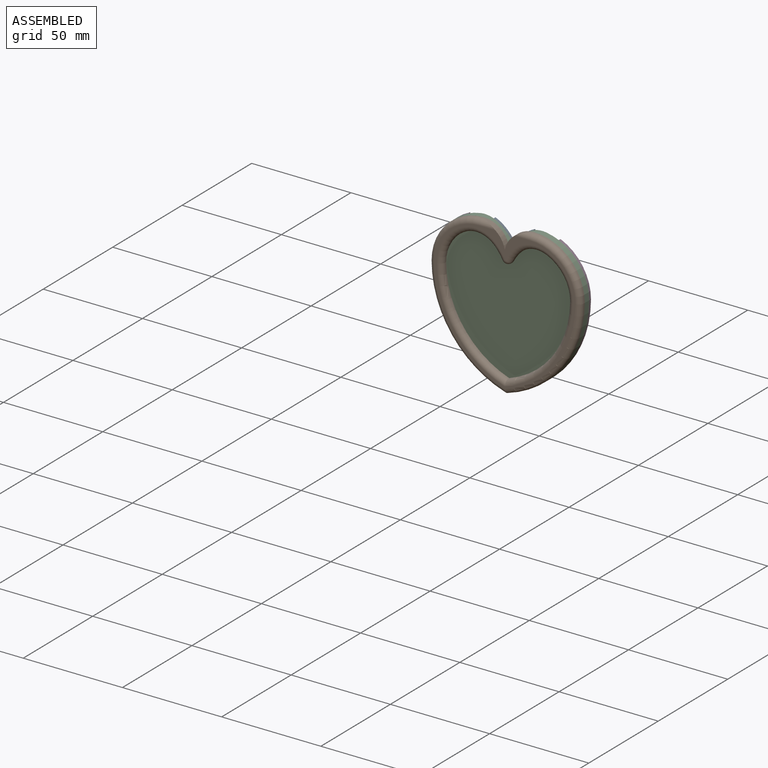
[diagram: assembled view]
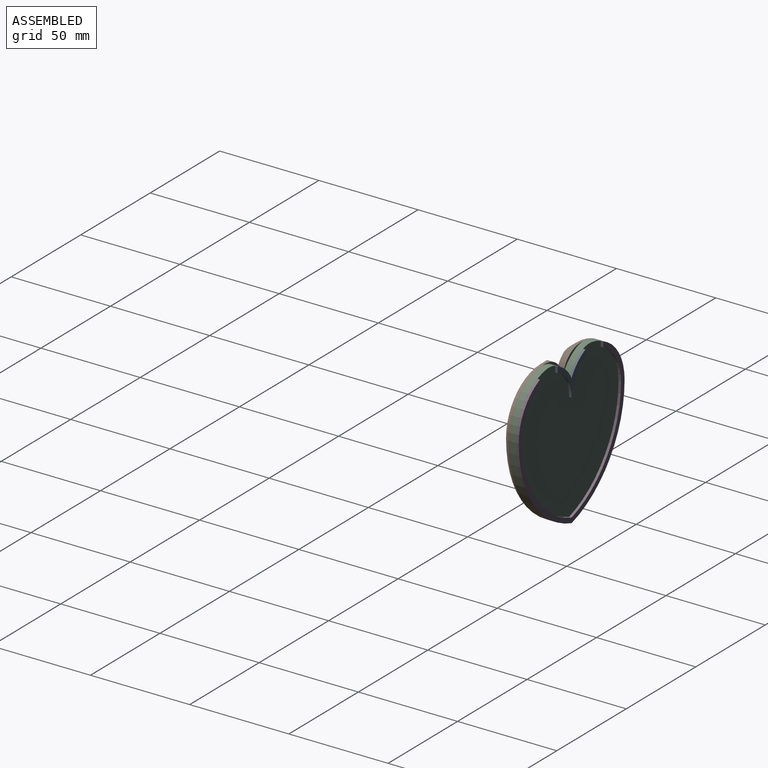
[diagram: assembled view, second angle]
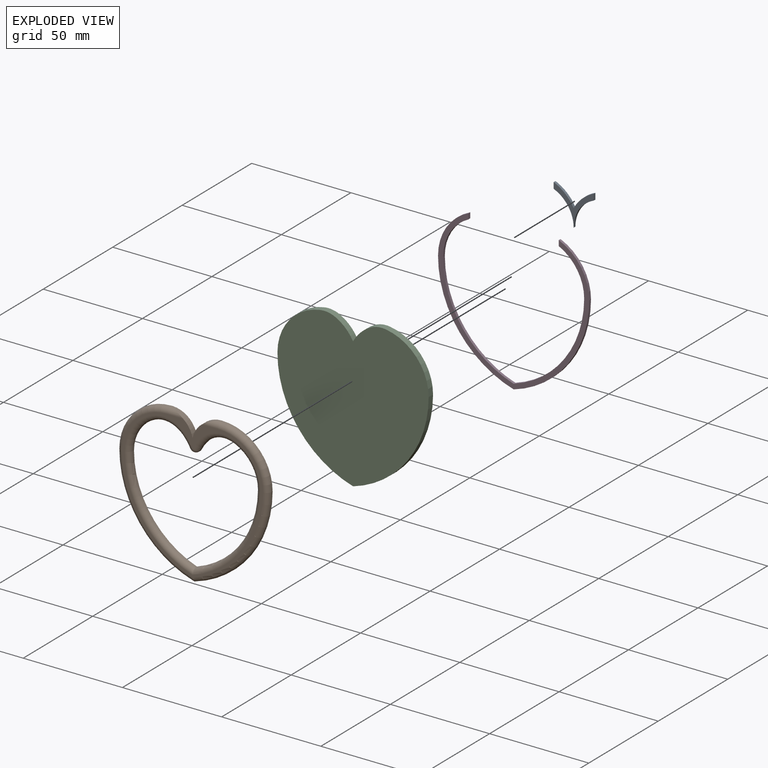
[diagram: exploded view]
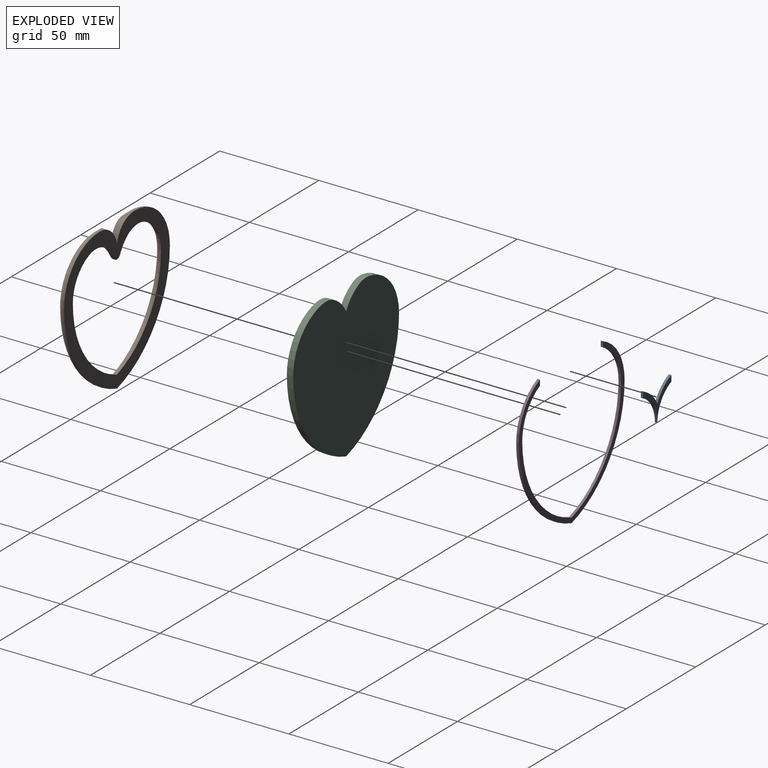
[diagram: exploded view, second angle]
ASSEMBLY  parts=4 mates=3
PART A: 10 faces, bbox 20.1x1.3x18.1 mm
  f0: plane 20.14x18.09mm, normal (0,-1,0), area 74.6mm2, adj f2,f3,f4,f5,f6,f7,f8,f9
  f1: plane 20.14x18.09mm, normal (0,1,0), area 74.6mm2, adj f2,f3,f4,f5,f6,f7,f8,f9
  f2: cylinder r=12.7mm len=1.33mm, axis (0,-1,0), area 1.9mm2, adj f0,f1,f5,f9
  f3: cylinder r=16.24mm len=15.02mm, axis (0,-1,0), area 24.4mm2, adj f0,f1,f7,f9
  f4: cylinder r=20.64mm len=8.74mm, axis (0,-1,0), area 15.8mm2, adj f0,f1,f5,f6
  f5: cylinder r=20.64mm len=8.74mm, axis (0,-1,0), area 15.8mm2, adj f0,f1,f2,f4
  f6: cylinder r=12.7mm len=1.33mm, axis (0,-1,0), area 1.9mm2, adj f0,f1,f4,f8
  f7: cylinder r=16.24mm len=15.02mm, axis (0,-1,0), area 24.4mm2, adj f0,f1,f3,f8
  f8: plane 3.07x1.27mm, normal (-1,0,0), area 3.9mm2, adj f0,f1,f6,f7
  f9: plane 3.07x1.27mm, normal (1,0,0), area 3.9mm2, adj f0,f1,f2,f3
PART B: 34 faces, bbox 84.9x4.3x82.5 mm
  f0: plane 71.12x71.01mm, normal (0,-1,0), area 351.5mm2, adj f7,f8,f18,f19,f20,f21,f22,f23
  f1: plane 76.2x76.2mm, normal (0,1,0), area 1461.9mm2, adj f2,f3,f4,f5,f6,f7,f8,f9
  f2: plane 0.64x0.51mm, normal (0,0,1), area 0.3mm2, adj f1,f7,f9,f33
  f3: plane 0.64x0.51mm, normal (0,0,1), area 0.3mm2, adj f1,f5,f8,f28
  f4: cylinder r=52.92mm len=50.8mm, axis (0,-1,0), area 43.2mm2, adj f1,f6,f9,f31
  f5: cylinder r=25.4mm len=25.4mm, axis (0,-1,0), area 25.3mm2, adj f1,f3,f6,f29
  f6: cylinder r=52.92mm len=50.8mm, axis (0,-1,0), area 43.2mm2, adj f1,f4,f5,f30
  f7: cylinder r=12.7mm len=12.19mm, axis (0,-1,0), area 47mm2, adj f0,f1,f2,f8,f33
  f8: cylinder r=12.7mm len=12.19mm, axis (0,-1,0), area 47mm2, adj f0,f1,f3,f7,f28
  f9: cylinder r=25.4mm len=25.4mm, axis (0,-1,0), area 25.3mm2, adj f1,f2,f4,f32
  f10: cylinder r=46.86mm len=44.45mm, axis (0,-1,0), area 37mm2, adj f1,f11,f15,f18
  f11: cylinder r=47.18mm len=44.45mm, axis (0,-1,0), area 37mm2, adj f1,f10,f12,f22
  f12: cylinder r=19.05mm len=17.46mm, axis (0,-1,0), area 14mm2, adj f1,f11,f17,f23
  f13: cylinder r=20.64mm len=5.7mm, axis (0,-1,0), area 4.6mm2, adj f1,f17,f25,f27
  f14: cylinder r=20.98mm len=5.42mm, axis (0,-1,0), area 4.3mm2, adj f1,f16,f21,f27
  f15: cylinder r=19.05mm len=17.6mm, axis (0,-1,0), area 14.2mm2, adj f1,f10,f16,f19
  f16: cylinder r=12.7mm len=13.84mm, axis (0,1,0), area 9.5mm2, adj f1,f14,f15,f20
  f17: cylinder r=12.7mm len=13.72mm, axis (0,1,0), area 9.3mm2, adj f1,f12,f13,f24
  f18: torus R=49.4mm, axis (0,-1,0), area 238.5mm2, adj f0,f10,f19,f22
  f19: torus R=21.59mm, axis (0,-1,0), area 93.8mm2, adj f0,f15,f18,f20
  f20: torus R=15.24mm, axis (0,-1,0), area 64mm2, adj f0,f16,f19,f21
  f21: torus R=23.52mm, axis (0,-1,0), area 28mm2, adj f0,f14,f20,f26
  f22: torus R=49.72mm, axis (0,-1,0), area 238.2mm2, adj f0,f11,f18,f23
  f23: torus R=21.59mm, axis (0,-1,0), area 92.4mm2, adj f0,f12,f22,f24
  f24: torus R=15.24mm, axis (0,-1,0), area 63mm2, adj f0,f17,f23,f25
  f25: torus R=23.18mm, axis (0,-1,0), area 30mm2, adj f0,f13,f24,f26
  f26: sphere r=2.54mm, area 14.2mm2, adj f21,f25,f27
  f27: cylinder r=2.54mm len=4.53mm, axis (0,-1,0), area 3.5mm2, adj f1,f13,f14,f26
  f28: cylinder r=2.54mm len=7.88mm, axis (1,0,0), area 17.5mm2, adj f0,f3,f8,f29
  f29: torus R=22.86mm, axis (0,-1,0), area 153.4mm2, adj f0,f5,f28,f30
  f30: torus R=50.38mm, axis (0,-1,0), area 265.9mm2, adj f0,f6,f29,f31
  f31: torus R=50.38mm, axis (0,-1,0), area 265.9mm2, adj f0,f4,f30,f32
  f32: torus R=22.86mm, axis (0,-1,0), area 153.4mm2, adj f0,f9,f31,f33
  f33: cylinder r=2.54mm len=7.88mm, axis (1,0,0), area 17.5mm2, adj f0,f2,f7,f32
PART C: 10 faces, bbox 76.2x3.2x76.1 mm
  f0: plane 76.2x76.06mm, normal (0,-1,0), area 4415.8mm2, adj f2,f3,f4,f5,f6,f7,f8,f9
  f1: plane 76.2x76.06mm, normal (0,1,0), area 4415.8mm2, adj f2,f3,f4,f5,f6,f7,f8,f9
  f2: cylinder r=25.4mm len=25.13mm, axis (0,-1,0), area 114.8mm2, adj f0,f1,f4,f9
  f3: cylinder r=25.4mm len=25.13mm, axis (0,-1,0), area 114.8mm2, adj f0,f1,f7,f8
  f4: cylinder r=52.92mm len=50.8mm, axis (0,-1,0), area 216.2mm2, adj f0,f1,f2,f7
  f5: cylinder r=20.64mm len=8.74mm, axis (0,-1,0), area 39.5mm2, adj f0,f1,f6,f8
  f6: cylinder r=20.64mm len=8.74mm, axis (0,-1,0), area 39.5mm2, adj f0,f1,f5,f9
  f7: cylinder r=52.92mm len=50.8mm, axis (0,-1,0), area 216.2mm2, adj f0,f1,f3,f4
  f8: cylinder r=12.7mm len=7.68mm, axis (0,-1,0), area 25.1mm2, adj f0,f1,f3,f5
  f9: cylinder r=12.7mm len=7.68mm, axis (0,-1,0), area 25.1mm2, adj f0,f1,f2,f6
PART D: 12 faces, bbox 76.2x1.3x74.1 mm
  f0: cylinder r=50.8mm len=48.26mm, axis (0,-1,0), area 81.4mm2, adj f1,f6,f9,f10
  f1: cylinder r=22.86mm len=20.55mm, axis (0,-1,0), area 32.4mm2, adj f0,f2,f9,f10
  f2: plane 2.77x1.27mm, normal (1,0,0), area 3.5mm2, adj f1,f3,f9,f10
  f3: cylinder r=25.4mm len=23.32mm, axis (0,-1,0), area 37.5mm2, adj f2,f4,f9,f10
  f4: cylinder r=52.92mm len=50.8mm, axis (0,-1,0), area 86.5mm2, adj f3,f5,f9,f10
  f5: cylinder r=52.92mm len=50.8mm, axis (0,-1,0), area 86.5mm2, adj f4,f7,f9,f10
  f6: cylinder r=50.8mm len=48.26mm, axis (0,-1,0), area 81.4mm2, adj f0,f8,f9,f10
  f7: cylinder r=25.4mm len=23.32mm, axis (0,-1,0), area 37.5mm2, adj f5,f9,f10,f11
  f8: cylinder r=22.86mm len=20.55mm, axis (0,-1,0), area 32.4mm2, adj f6,f9,f10,f11
  f9: plane 76.2x74.12mm, normal (0,1,0), area 475.5mm2, adj f0,f1,f2,f3,f4,f5,f6,f7
  f10: plane 76.2x74.12mm, normal (0,-1,0), area 475.5mm2, adj f0,f1,f2,f3,f4,f5,f6,f7
  f11: plane 2.77x1.27mm, normal (-1,0,0), area 3.5mm2, adj f7,f8,f9,f10
PLACE A t=(-70.82,-20.45,-49.34)mm
PLACE B t=(-70.82,-24.89,-49.34)mm
PLACE C t=(-70.82,-21.72,-49.34)mm
PLACE D t=(-70.82,-20.45,-49.34)mm
MATE fastened C.f0 <-> B.f1  axis (0,-1,0) through (-32.72,-24.89,-49.34)mm
MATE fastened D.f10 <-> C.f1  axis (0,-1,0) through (-32.72,-21.72,-49.34)mm
MATE fastened A.f0 <-> C.f1  axis (0,-1,0) through (-32.72,-21.72,16.7)mm
